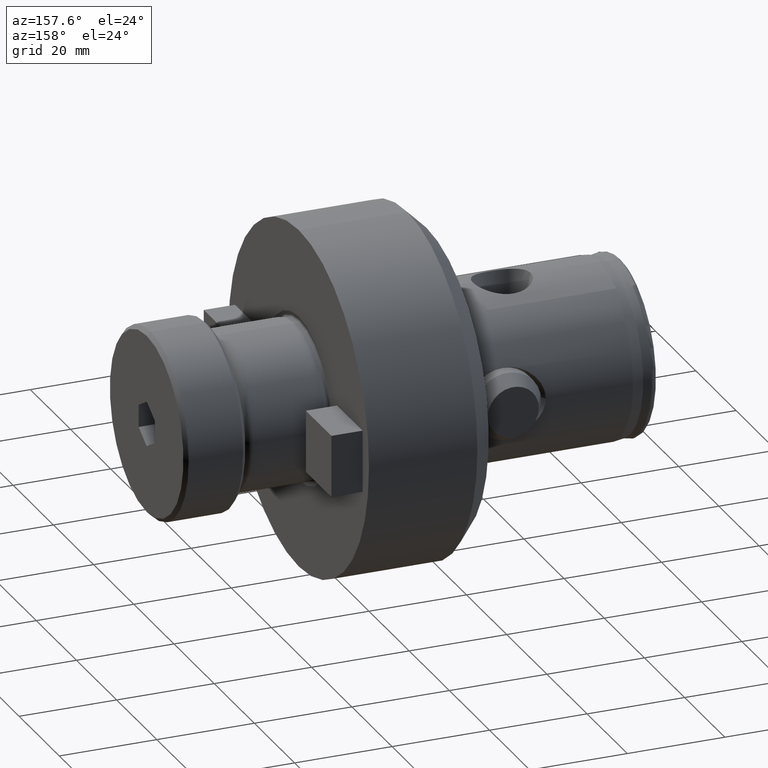
[diagram: clean part render]
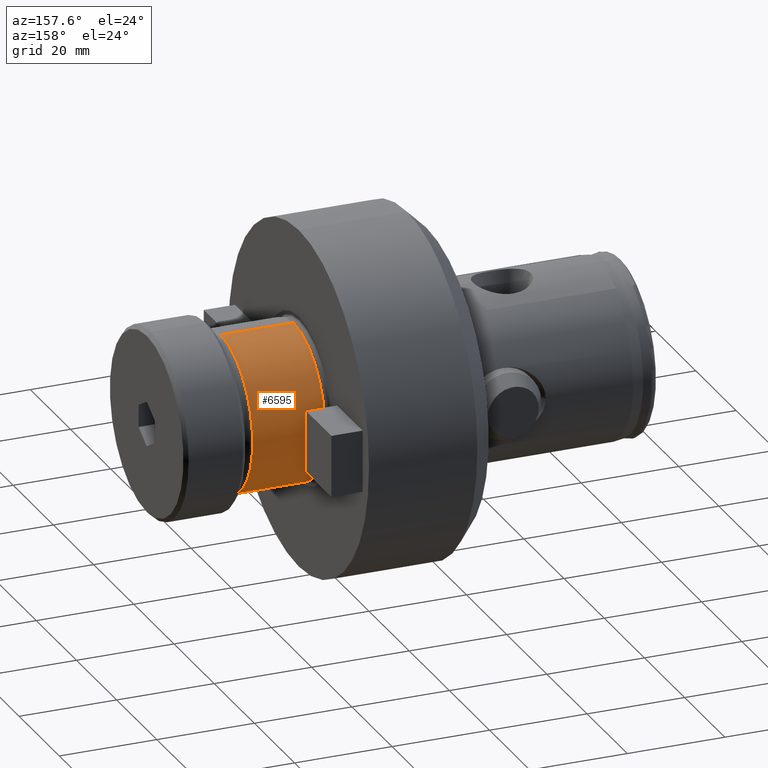
[diagram: same view with one face highlighted and labeled with its STEP entity id]
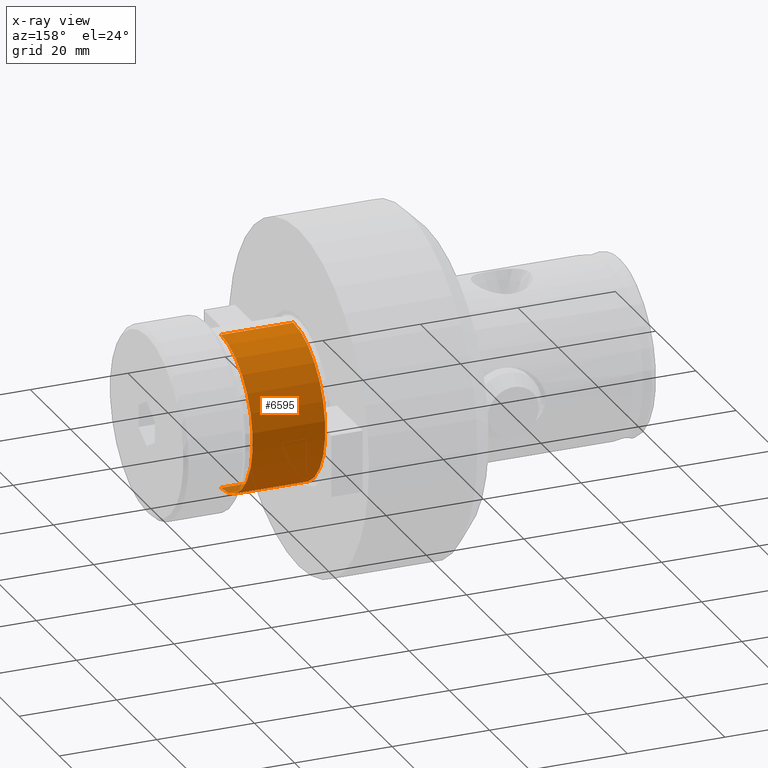
[diagram: x-ray of the same camera — body ghosted, the highlighted face saturated]
A machine part, auxiliary view. The second image highlights one B-rep face of the part: STEP entity #6595.
The next image is the same camera in x-ray: the body ghosted, the highlighted face saturated — about 1% of this face is hidden behind the body in this view.
In plain terms, the highlighted cylindrical surface (partial cylindrical patch) has radius 15.8725 mm, axis along (-1, -0, -0).
Its self-contained STEP definition (entity closure, byte-faithful):
#36 = CIRCLE ( 'NONE', #2344, 15.87250000000000000 ) ;
#291 = VECTOR ( 'NONE', #1201, 1000.000000000000000 ) ;
#521 = ORIENTED_EDGE ( 'NONE', *, *, #1694, .T. ) ;
#643 = DIRECTION ( 'NONE',  ( -1.000000000000000000, -0.0000000000000000000, -0.0000000000000000000 ) ) ;
#1201 = DIRECTION ( 'NONE',  ( -1.000000000000000000, -0.0000000000000000000, -0.0000000000000000000 ) ) ;
#1263 = VERTEX_POINT ( 'NONE', #6329 ) ;
#1555 = LINE ( 'NONE', #2720, #1880 ) ;
#1620 = EDGE_LOOP ( 'NONE', ( #521, #6025, #8239, #2930 ) ) ;
#1694 = EDGE_CURVE ( 'NONE', #6018, #1263, #36, .T. ) ;
#1880 = VECTOR ( 'NONE', #643, 1000.000000000000000 ) ;
#2284 = CARTESIAN_POINT ( 'NONE',  ( 82.15999999999999700, 1.943820631946636500E-015, 15.87250000000000000 ) ) ;
#2344 = AXIS2_PLACEMENT_3D ( 'NONE', #8180, #5508, #6207 ) ;
#2565 = FACE_OUTER_BOUND ( 'NONE', #1620, .T. ) ;
#2720 = CARTESIAN_POINT ( 'NONE',  ( 83.65999999999999700, 0.0000000000000000000, 15.87250000000000000 ) ) ;
#2823 = EDGE_CURVE ( 'NONE', #3860, #5720, #8484, .T. ) ;
#2930 = ORIENTED_EDGE ( 'NONE', *, *, #3869, .F. ) ;
#3860 = VERTEX_POINT ( 'NONE', #4024 ) ;
#3869 = EDGE_CURVE ( 'NONE', #6018, #3860, #1555, .T. ) ;
#3944 = LINE ( 'NONE', #4523, #291 ) ;
#4024 = CARTESIAN_POINT ( 'NONE',  ( 67.27223641030745700, 1.943820631946636500E-015, 15.87250000000000000 ) ) ;
#4523 = CARTESIAN_POINT ( 'NONE',  ( 83.65999999999999700, 1.943820631946636500E-015, -15.87250000000000000 ) ) ;
#4646 = DIRECTION ( 'NONE',  ( 0.0000000000000000000, 0.0000000000000000000, 1.000000000000000000 ) ) ;
#4723 = DIRECTION ( 'NONE',  ( 0.0000000000000000000, 0.0000000000000000000, 1.000000000000000000 ) ) ;
#4750 = CARTESIAN_POINT ( 'NONE',  ( 67.27223641030745700, 0.0000000000000000000, 0.0000000000000000000 ) ) ;
#5409 = CYLINDRICAL_SURFACE ( 'NONE', #8003, 15.87250000000000000 ) ;
#5508 = DIRECTION ( 'NONE',  ( -1.000000000000000000, -0.0000000000000000000, -0.0000000000000000000 ) ) ;
#5720 = VERTEX_POINT ( 'NONE', #6283 ) ;
#5887 = EDGE_CURVE ( 'NONE', #1263, #5720, #3944, .T. ) ;
#6018 = VERTEX_POINT ( 'NONE', #2284 ) ;
#6025 = ORIENTED_EDGE ( 'NONE', *, *, #5887, .T. ) ;
#6190 = DIRECTION ( 'NONE',  ( -1.000000000000000000, -0.0000000000000000000, -0.0000000000000000000 ) ) ;
#6207 = DIRECTION ( 'NONE',  ( 0.0000000000000000000, 0.0000000000000000000, -1.000000000000000000 ) ) ;
#6283 = CARTESIAN_POINT ( 'NONE',  ( 67.27223641030745700, 0.0000000000000000000, -15.87250000000000000 ) ) ;
#6329 = CARTESIAN_POINT ( 'NONE',  ( 82.15999999999999700, 0.0000000000000000000, -15.87250000000000000 ) ) ;
#6444 = DIRECTION ( 'NONE',  ( -1.000000000000000000, -0.0000000000000000000, -0.0000000000000000000 ) ) ;
#6595 = ADVANCED_FACE ( 'NONE', ( #2565 ), #5409, .T. ) ;
#7065 = AXIS2_PLACEMENT_3D ( 'NONE', #4750, #6190, #4723 ) ;
#8003 = AXIS2_PLACEMENT_3D ( 'NONE', #8063, #6444, #4646 ) ;
#8063 = CARTESIAN_POINT ( 'NONE',  ( 83.65999999999999700, 0.0000000000000000000, 0.0000000000000000000 ) ) ;
#8180 = CARTESIAN_POINT ( 'NONE',  ( 82.15999999999999700, 0.0000000000000000000, 0.0000000000000000000 ) ) ;
#8239 = ORIENTED_EDGE ( 'NONE', *, *, #2823, .F. ) ;
#8484 = CIRCLE ( 'NONE', #7065, 15.87250000000000000 ) ;